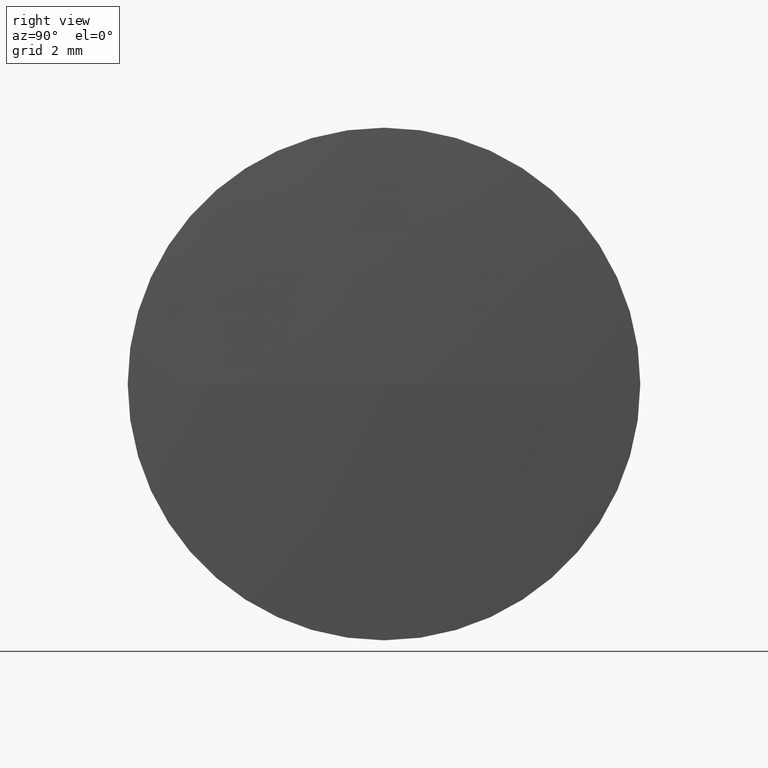
[diagram: clean part render]
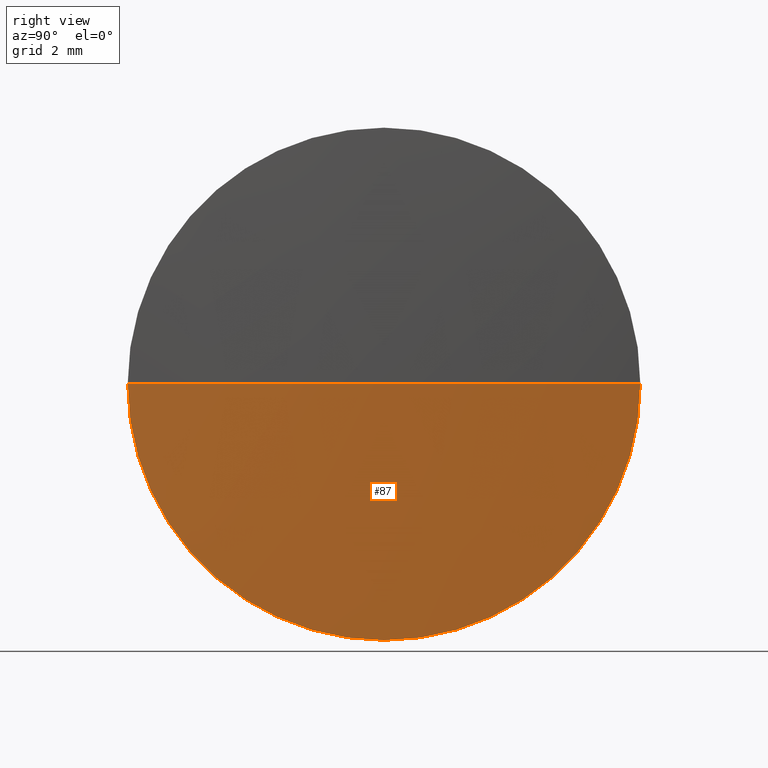
[diagram: same view with one face highlighted and labeled with its STEP entity id]
A machine part, right view. The second image highlights one B-rep face of the part: STEP entity #87.
In plain terms, the highlighted spherical surface has radius 100.93 mm.
Its self-contained STEP definition (entity closure, byte-faithful):
#20 = CARTESIAN_POINT ( 'NONE',  ( 44.22913117304555200, 30.65805651159237000, 7.776507174585586700E-016 ) ) ;
#21 = AXIS2_PLACEMENT_3D ( 'NONE', #295, #76, #160 ) ;
#22 = DIRECTION ( 'NONE',  ( 0.0000000000000000000, -1.000000000000000000, -1.224646799147353200E-016 ) ) ;
#23 = DIRECTION ( 'NONE',  ( 0.0000000000000000000, 0.0000000000000000000, 1.000000000000000000 ) ) ;
#29 = EDGE_CURVE ( 'NONE', #307, #259, #141, .T. ) ;
#45 = AXIS2_PLACEMENT_3D ( 'NONE', #104, #189, #338 ) ;
#67 = AXIS2_PLACEMENT_3D ( 'NONE', #155, #129, #157 ) ;
#76 = DIRECTION ( 'NONE',  ( 0.0000000000000000000, 0.0000000000000000000, -1.000000000000000000 ) ) ;
#84 = FACE_OUTER_BOUND ( 'NONE', #107, .T. ) ;
#87 = ADVANCED_FACE ( 'NONE', ( #84 ), #251, .T. ) ;
#90 = ORIENTED_EDGE ( 'NONE', *, *, #187, .F. ) ;
#100 = CARTESIAN_POINT ( 'NONE',  ( 44.22913117304555200, 24.30805651159239000, -6.349999999999997900 ) ) ;
#104 = CARTESIAN_POINT ( 'NONE',  ( 44.22913117304555200, 24.30805651159239000, 0.0000000000000000000 ) ) ;
#106 = ORIENTED_EDGE ( 'NONE', *, *, #267, .T. ) ;
#107 = EDGE_LOOP ( 'NONE', ( #233, #106, #206, #90 ) ) ;
#126 = CARTESIAN_POINT ( 'NONE',  ( -56.50112580384402600, 24.30805651159245400, 0.0000000000000000000 ) ) ;
#129 = DIRECTION ( 'NONE',  ( 0.0000000000000000000, 0.0000000000000000000, 1.000000000000000000 ) ) ;
#141 = CIRCLE ( 'NONE', #208, 100.9302094054610100 ) ;
#146 = AXIS2_PLACEMENT_3D ( 'NONE', #344, #162, #23 ) ;
#152 = CIRCLE ( 'NONE', #146, 6.349999999999997900 ) ;
#155 = CARTESIAN_POINT ( 'NONE',  ( -56.50112580384402600, 24.30805651159245400, 0.0000000000000000000 ) ) ;
#157 = DIRECTION ( 'NONE',  ( 0.0000000000000000000, -1.000000000000000000, 0.0000000000000000000 ) ) ;
#160 = DIRECTION ( 'NONE',  ( -1.000000000000000000, 0.0000000000000000000, 0.0000000000000000000 ) ) ;
#162 = DIRECTION ( 'NONE',  ( -1.000000000000000000, -0.0000000000000000000, -0.0000000000000000000 ) ) ;
#184 = VERTEX_POINT ( 'NONE', #194 ) ;
#187 = EDGE_CURVE ( 'NONE', #259, #314, #152, .T. ) ;
#189 = DIRECTION ( 'NONE',  ( -1.000000000000000000, -0.0000000000000000000, -0.0000000000000000000 ) ) ;
#194 = CARTESIAN_POINT ( 'NONE',  ( 44.22913117304555200, 17.95805651159247800, 0.0000000000000000000 ) ) ;
#206 = ORIENTED_EDGE ( 'NONE', *, *, #286, .F. ) ;
#208 = AXIS2_PLACEMENT_3D ( 'NONE', #126, #290, #22 ) ;
#233 = ORIENTED_EDGE ( 'NONE', *, *, #29, .F. ) ;
#244 = CIRCLE ( 'NONE', #21, 100.9302094054610100 ) ;
#251 = SPHERICAL_SURFACE ( 'NONE', #67, 100.9302094054610100 ) ;
#259 = VERTEX_POINT ( 'NONE', #20 ) ;
#267 = EDGE_CURVE ( 'NONE', #307, #184, #244, .T. ) ;
#286 = EDGE_CURVE ( 'NONE', #314, #184, #287, .T. ) ;
#287 = CIRCLE ( 'NONE', #45, 6.349999999999997900 ) ;
#290 = DIRECTION ( 'NONE',  ( 0.0000000000000000000, -1.224646799147353200E-016, 1.000000000000000000 ) ) ;
#295 = CARTESIAN_POINT ( 'NONE',  ( -56.50112580384402600, 24.30805651159245400, 0.0000000000000000000 ) ) ;
#299 = CARTESIAN_POINT ( 'NONE',  ( 44.42908360161699500, 24.30805651159244700, 0.0000000000000000000 ) ) ;
#307 = VERTEX_POINT ( 'NONE', #299 ) ;
#314 = VERTEX_POINT ( 'NONE', #100 ) ;
#338 = DIRECTION ( 'NONE',  ( 0.0000000000000000000, 0.0000000000000000000, 1.000000000000000000 ) ) ;
#344 = CARTESIAN_POINT ( 'NONE',  ( 44.22913117304555200, 24.30805651159239000, 0.0000000000000000000 ) ) ;